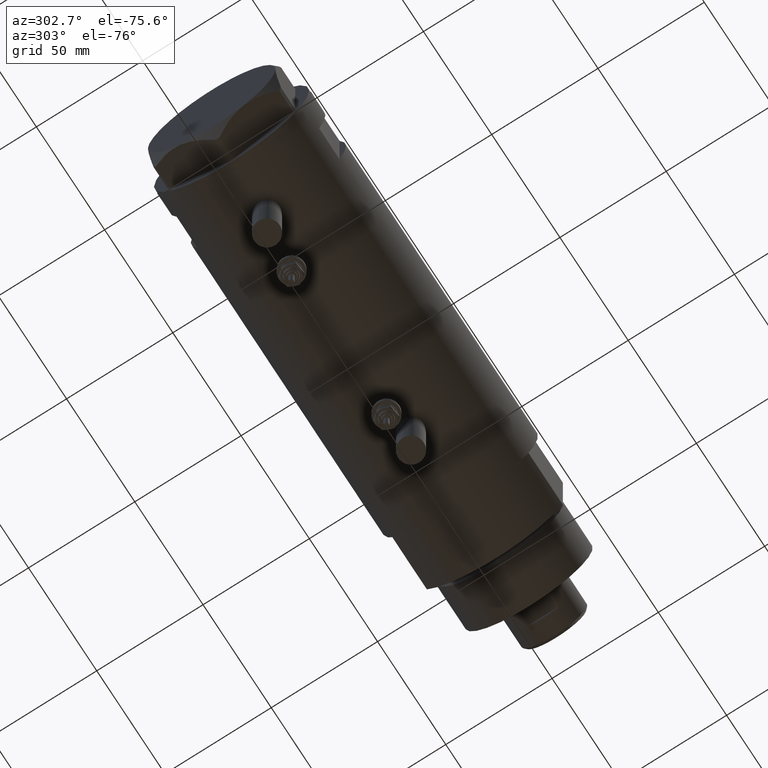
[diagram: clean part render]
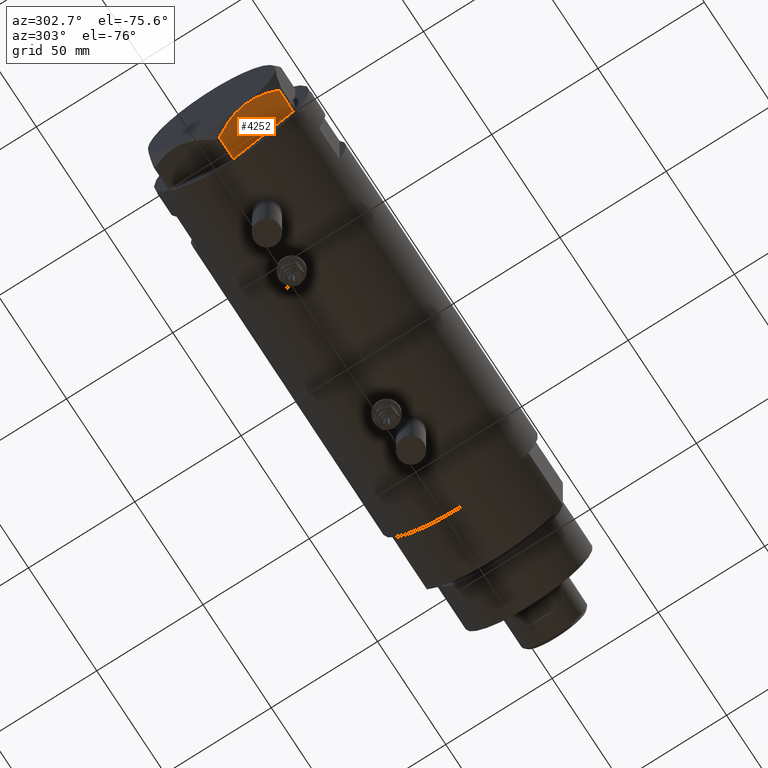
[diagram: same view with one face highlighted and labeled with its STEP entity id]
A machine part, auxiliary view. The second image highlights one B-rep face of the part: STEP entity #4252.
In plain terms, the highlighted planar face has unit normal (0, 0.5, 0.866).
Its self-contained STEP definition (entity closure, byte-faithful):
#53 = ORIENTED_EDGE ( 'NONE', *, *, #3360, .T. ) ;
#151 = CARTESIAN_POINT ( 'NONE',  ( 0.000000000000000000, 34.64101615137754209, 14.50000000000000000 ) ) ;
#249 = VERTEX_POINT ( 'NONE', #4177 ) ;
#428 = EDGE_CURVE ( 'NONE', #511, #5783, #5112, .T. ) ;
#511 = VERTEX_POINT ( 'NONE', #2269 ) ;
#694 = CARTESIAN_POINT ( 'NONE',  ( -5.430403497542002356, 31.50577123026336679, 12.63511531451932157 ) ) ;
#755 = CARTESIAN_POINT ( 'NONE',  ( -23.36084816446653534, 21.15362417512481841, 12.99122625442232248 ) ) ;
#1087 = DIRECTION ( 'NONE',  ( 0.4999999999999998335, -0.8660254037844388186, 0.000000000000000000 ) ) ;
#1224 = CARTESIAN_POINT ( 'NONE',  ( -14.99999999999999645, 25.98076211353316367, 14.50000000000000000 ) ) ;
#1475 = EDGE_LOOP ( 'NONE', ( #3205, #4600, #2778, #2605, #53 ) ) ;
#1629 = CARTESIAN_POINT ( 'NONE',  ( -11.92931894229901246, 27.75362064879230317, 14.29910535634587099 ) ) ;
#1661 = CARTESIAN_POINT ( 'NONE',  ( -10.11505054612624832, 28.80108899570488035, 14.00566141361760764 ) ) ;
#1719 = CARTESIAN_POINT ( 'NONE',  ( -24.52256617298829866, 20.48290597018235104, 12.55468001512206833 ) ) ;
#1844 = B_SPLINE_CURVE_WITH_KNOTS ( 'NONE', 3,
 ( #4493, #3016, #4015, #5848, #755, #1719, #3495, #4430, #3956, #5786 ),
 .UNSPECIFIED., .F., .F.,
 ( 4, 2, 2, 2, 4 ),
 ( 0.01795453117522810907, 0.02625795893839791631, 0.02833381587919037159, 0.03040967281998281993, 0.03456138670156771314 ),
 .UNSPECIFIED. ) ;
#1912 = DIRECTION ( 'NONE',  ( 0.8660254037844387076, 0.4999999999999997780, 0.000000000000000000 ) ) ;
#2269 = CARTESIAN_POINT ( 'NONE',  ( -0.9699484522384067553, 34.08101615137763218, 10.40518423703594841 ) ) ;
#2535 = DIRECTION ( 'NONE',  ( 0.000000000000000000, 0.000000000000000000, 1.000000000000000000 ) ) ;
#2542 = DIRECTION ( 'NONE',  ( -0.8660254037844387076, -0.4999999999999998335, 0.000000000000000000 ) ) ;
#2565 = CARTESIAN_POINT ( 'NONE',  ( -14.38812268849982878, 26.33402964403881441, 14.50000000000000355 ) ) ;
#2605 = ORIENTED_EDGE ( 'NONE', *, *, #428, .F. ) ;
#2642 = VERTEX_POINT ( 'NONE', #5016 ) ;
#2778 = ORIENTED_EDGE ( 'NONE', *, *, #5824, .F. ) ;
#2852 = LINE ( 'NONE', #5329, #5484 ) ;
#2888 = EDGE_CURVE ( 'NONE', #5600, #249, #5732, .T. ) ;
#3016 = CARTESIAN_POINT ( 'NONE',  ( -17.43031680809874473, 24.57761805016127710, 14.50000000000000533 ) ) ;
#3205 = ORIENTED_EDGE ( 'NONE', *, *, #2888, .T. ) ;
#3360 = EDGE_CURVE ( 'NONE', #511, #5600, #2852, .T. ) ;
#3432 = CARTESIAN_POINT ( 'NONE',  ( -29.03005154776140628, 17.88050807568878753, 14.50000000000000000 ) ) ;
#3449 = VECTOR ( 'NONE', #2535, 1000.000000000000000 ) ;
#3467 = CARTESIAN_POINT ( 'NONE',  ( -12.54037849421162676, 27.40082525200466890, 14.37423503257921809 ) ) ;
#3495 = CARTESIAN_POINT ( 'NONE',  ( -25.09761465865699392, 20.15090157218442357, 12.31959434659020225 ) ) ;
#3501 = LINE ( 'NONE', #3432, #3449 ) ;
#3651 = VECTOR ( 'NONE', #2542, 1000.000000000000114 ) ;
#3956 = CARTESIAN_POINT ( 'NONE',  ( -27.92668431253403583, 18.51753744596231854, 11.01056656432685266 ) ) ;
#4015 = CARTESIAN_POINT ( 'NONE',  ( -19.82219921729533141, 23.19666409734169932, 14.10092492974134792 ) ) ;
#4177 = CARTESIAN_POINT ( 'NONE',  ( -29.03005154776141339, 17.88050807568878042, 0.000000000000000000 ) ) ;
#4219 = AXIS2_PLACEMENT_3D ( 'NONE', #151, #1087, #1912 ) ;
#4252 = ADVANCED_FACE ( 'NONE', ( #5176 ), #5147, .F. ) ;
#4348 = EDGE_CURVE ( 'NONE', #249, #2642, #3501, .T. ) ;
#4430 = CARTESIAN_POINT ( 'NONE',  ( -26.80734602959449475, 19.16378770493171046, 11.56973717813737856 ) ) ;
#4493 = CARTESIAN_POINT ( 'NONE',  ( -14.99999999999999645, 25.98076211353316367, 14.50000000000000000 ) ) ;
#4600 = ORIENTED_EDGE ( 'NONE', *, *, #4348, .T. ) ;
#4758 = CARTESIAN_POINT ( 'NONE',  ( -8.929227268745748347, 29.48572438411184393, 13.71922620632299328 ) ) ;
#4823 = CARTESIAN_POINT ( 'NONE',  ( -3.175372020745250712, 32.80771426042305450, 11.61522964162834093 ) ) ;
#4835 = CARTESIAN_POINT ( 'NONE',  ( 0.000000000000000000, 34.64101615137754209, 0.000000000000000000 ) ) ;
#5016 = CARTESIAN_POINT ( 'NONE',  ( -29.03005154776140984, 17.88050807568878398, 10.40518423703604256 ) ) ;
#5112 = B_SPLINE_CURVE_WITH_KNOTS ( 'NONE', 3,
 ( #5346, #4823, #694, #4758, #1661, #1629, #3467, #5315, #2565, #1224 ),
 .UNSPECIFIED., .F., .F.,
 ( 4, 2, 2, 2, 4 ),
 ( 0.001230196178133369841, 0.009592363676680740539, 0.01377344742595442567, 0.01586398930059126564, 0.01795453117522810907 ),
 .UNSPECIFIED. ) ;
#5147 = PLANE ( 'NONE',  #4219 ) ;
#5176 = FACE_OUTER_BOUND ( 'NONE', #1475, .T. ) ;
#5292 = DIRECTION ( 'NONE',  ( 0.000000000000000000, 0.000000000000000000, -1.000000000000000000 ) ) ;
#5315 = CARTESIAN_POINT ( 'NONE',  ( -13.77383861939865461, 26.68868671669327242, 14.47500996539161555 ) ) ;
#5329 = CARTESIAN_POINT ( 'NONE',  ( -0.9699484522385681817, 34.08101615137753981, 14.50000000000000000 ) ) ;
#5346 = CARTESIAN_POINT ( 'NONE',  ( -0.9699484522384067553, 34.08101615137763218, 10.40518423703594841 ) ) ;
#5484 = VECTOR ( 'NONE', #5292, 1000.000000000000000 ) ;
#5600 = VERTEX_POINT ( 'NONE', #5835 ) ;
#5732 = LINE ( 'NONE', #4835, #3651 ) ;
#5783 = VERTEX_POINT ( 'NONE', #5893 ) ;
#5786 = CARTESIAN_POINT ( 'NONE',  ( -29.03005154776140984, 17.88050807568878398, 10.40518423703604256 ) ) ;
#5824 = EDGE_CURVE ( 'NONE', #5783, #2642, #1844, .T. ) ;
#5835 = CARTESIAN_POINT ( 'NONE',  ( -0.9699484522385684038, 34.08101615137753981, 0.000000000000000000 ) ) ;
#5848 = CARTESIAN_POINT ( 'NONE',  ( -22.77266513462828712, 21.49321180573470258, 13.19311392138146388 ) ) ;
#5893 = CARTESIAN_POINT ( 'NONE',  ( -14.99999999999999645, 25.98076211353316367, 14.50000000000000000 ) ) ;